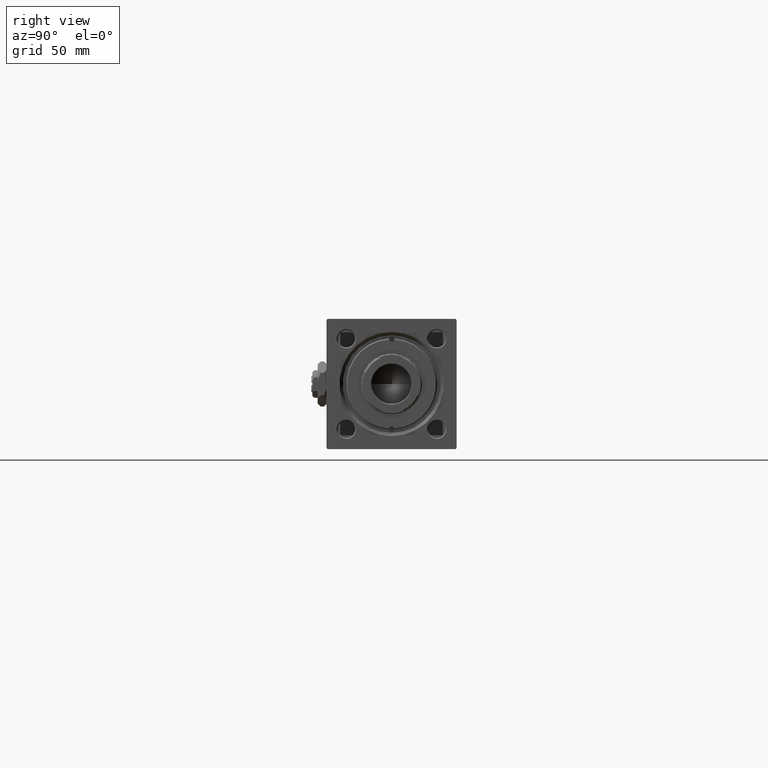
[diagram: clean part render]
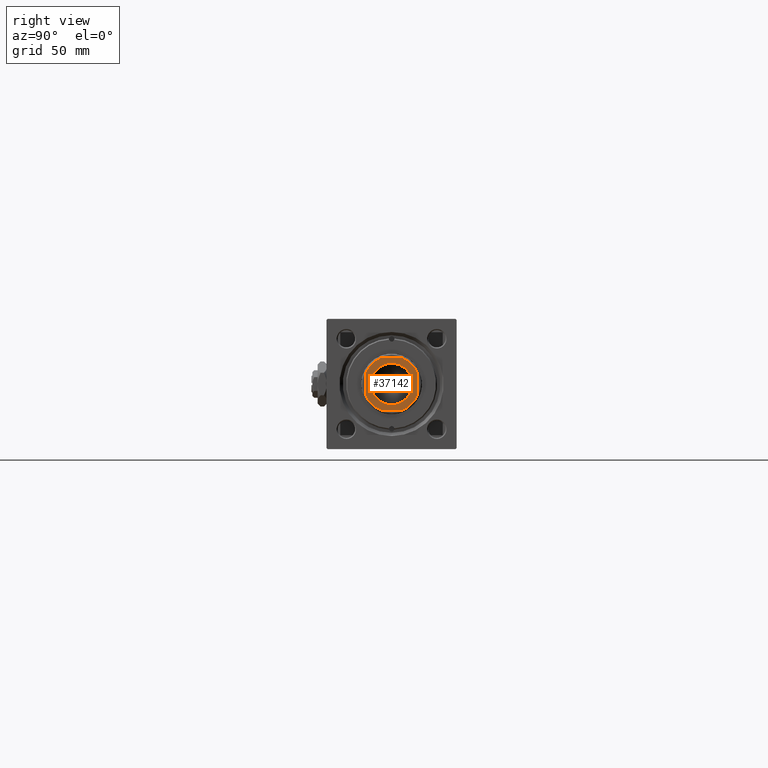
[diagram: same view with one face highlighted and labeled with its STEP entity id]
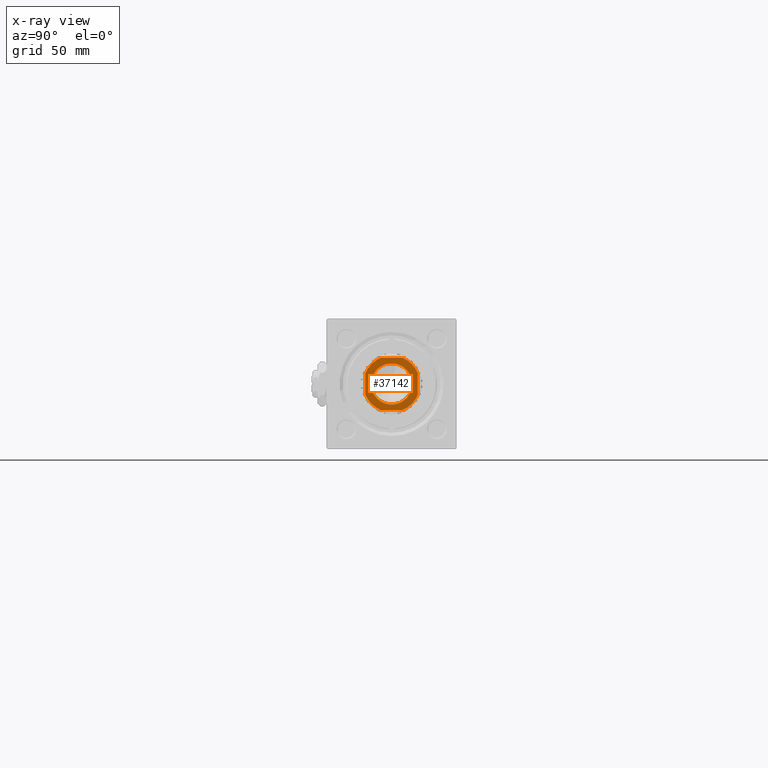
[diagram: x-ray of the same camera — body ghosted, the highlighted face saturated]
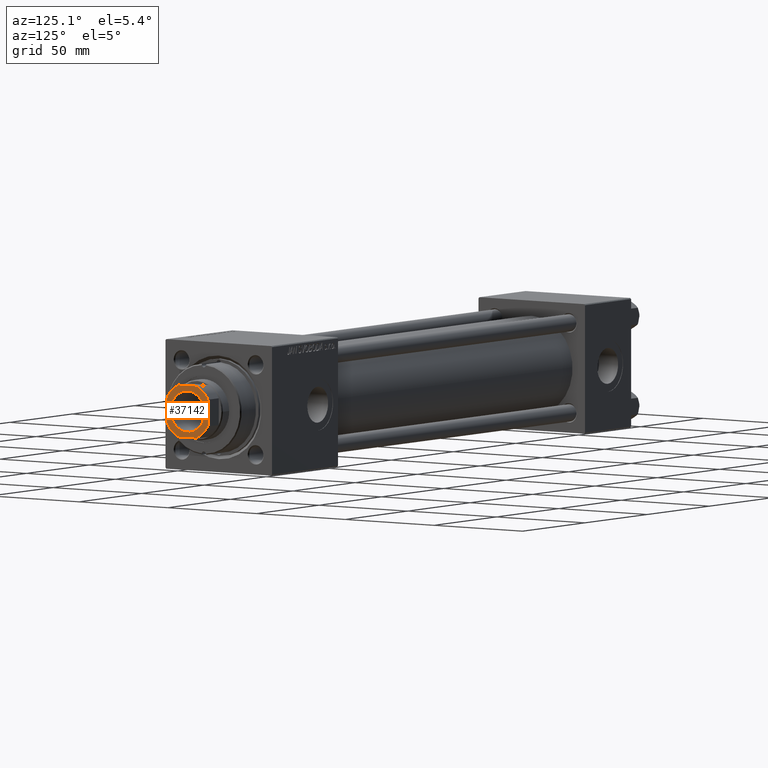
[diagram: same view with one face highlighted and labeled with its STEP entity id]
A machine part, right view. The second image highlights one B-rep face of the part: STEP entity #37142.
The next image is the same camera in x-ray: the body ghosted, the highlighted face saturated — about 0% of this face is hidden behind the body in this view.
A second angle (auxiliary view) of the same face is appended — the face is thin or edge-on in the first view.
In plain terms, the highlighted planar face has unit normal (1, 0, 0).
Its self-contained STEP definition (entity closure, byte-faithful):
#1308 = EDGE_CURVE ( 'NONE', #29845, #2218, #42999, .T. ) ;
#1855 = VERTEX_POINT ( 'NONE', #30164 ) ;
#2218 = VERTEX_POINT ( 'NONE', #50008 ) ;
#2349 = CARTESIAN_POINT ( 'NONE',  ( 0.000000000000000000, 0.000000000000000000, 276.0000000000000000 ) ) ;
#2435 = EDGE_LOOP ( 'NONE', ( #6695, #37222 ) ) ;
#2700 = CARTESIAN_POINT ( 'NONE',  ( 0.000000000000000000, 0.000000000000000000, 276.0000000000000000 ) ) ;
#2894 = AXIS2_PLACEMENT_3D ( 'NONE', #40433, #16571, #47864 ) ;
#3397 = VERTEX_POINT ( 'NONE', #16537 ) ;
#3757 = EDGE_CURVE ( 'NONE', #16076, #22108, #32649, .T. ) ;
#4507 = AXIS2_PLACEMENT_3D ( 'NONE', #16569, #44678, #8345 ) ;
#6446 = DIRECTION ( 'NONE',  ( 0.000000000000000000, -0.000000000000000000, -1.000000000000000000 ) ) ;
#6695 = ORIENTED_EDGE ( 'NONE', *, *, #19611, .T. ) ;
#6736 = DIRECTION ( 'NONE',  ( 1.000000000000000000, 0.000000000000000000, 0.000000000000000000 ) ) ;
#8092 = VECTOR ( 'NONE', #15410, 1000.000000000000000 ) ;
#8345 = DIRECTION ( 'NONE',  ( 1.000000000000000000, 0.000000000000000000, 0.000000000000000000 ) ) ;
#10423 = DIRECTION ( 'NONE',  ( 1.000000000000000000, 0.000000000000000000, 0.000000000000000000 ) ) ;
#10554 = CIRCLE ( 'NONE', #46990, 12.99999999999991829 ) ;
#11487 = AXIS2_PLACEMENT_3D ( 'NONE', #2700, #6446, #22072 ) ;
#11810 = ORIENTED_EDGE ( 'NONE', *, *, #38499, .T. ) ;
#12907 = EDGE_CURVE ( 'NONE', #3397, #28743, #32438, .T. ) ;
#14276 = VERTEX_POINT ( 'NONE', #47107 ) ;
#15221 = LINE ( 'NONE', #22635, #34866 ) ;
#15223 = CARTESIAN_POINT ( 'NONE',  ( 0.000000000000000000, 0.000000000000000000, 276.0000000000000000 ) ) ;
#15410 = DIRECTION ( 'NONE',  ( -1.000000000000000000, -0.000000000000000000, -0.000000000000000000 ) ) ;
#15592 = FACE_OUTER_BOUND ( 'NONE', #50740, .T. ) ;
#16076 = VERTEX_POINT ( 'NONE', #26405 ) ;
#16391 = CARTESIAN_POINT ( 'NONE',  ( 11.99999999999999822, 4.999999999999779732, 276.0000000000000000 ) ) ;
#16537 = CARTESIAN_POINT ( 'NONE',  ( 4.999999999999982236, -12.00000000000000355, 276.0000000000000000 ) ) ;
#16569 = CARTESIAN_POINT ( 'NONE',  ( 0.000000000000000000, 0.000000000000000000, 276.0000000000000000 ) ) ;
#16571 = DIRECTION ( 'NONE',  ( -0.000000000000000000, 0.000000000000000000, 1.000000000000000000 ) ) ;
#16927 = CARTESIAN_POINT ( 'NONE',  ( 0.000000000000000000, 0.000000000000000000, 276.0000000000000000 ) ) ;
#17318 = ORIENTED_EDGE ( 'NONE', *, *, #3757, .T. ) ;
#17448 = DIRECTION ( 'NONE',  ( 1.000000000000000000, 0.000000000000000000, 0.000000000000000000 ) ) ;
#17721 = EDGE_CURVE ( 'NONE', #28743, #40472, #40059, .T. ) ;
#18465 = EDGE_CURVE ( 'NONE', #19158, #1855, #39397, .T. ) ;
#18530 = DIRECTION ( 'NONE',  ( -0.000000000000000000, 0.000000000000000000, 1.000000000000000000 ) ) ;
#19158 = VERTEX_POINT ( 'NONE', #45512 ) ;
#19611 = EDGE_CURVE ( 'NONE', #1855, #19158, #24165, .T. ) ;
#22072 = DIRECTION ( 'NONE',  ( 1.000000000000000000, 0.000000000000000000, 0.000000000000000000 ) ) ;
#22108 = VERTEX_POINT ( 'NONE', #49709 ) ;
#22635 = CARTESIAN_POINT ( 'NONE',  ( -11.99999999999999822, -12.00000000000000355, 276.0000000000000000 ) ) ;
#24165 = CIRCLE ( 'NONE', #11487, 9.549999999999975842 ) ;
#26405 = CARTESIAN_POINT ( 'NONE',  ( 4.999999999999785949, 11.99999999999999645, 276.0000000000000000 ) ) ;
#27312 = DIRECTION ( 'NONE',  ( -2.891205793294678326E-16, 1.000000000000000000, -0.000000000000000000 ) ) ;
#27606 = ORIENTED_EDGE ( 'NONE', *, *, #1308, .T. ) ;
#28024 = AXIS2_PLACEMENT_3D ( 'NONE', #2349, #18530, #45028 ) ;
#28743 = VERTEX_POINT ( 'NONE', #49393 ) ;
#29845 = VERTEX_POINT ( 'NONE', #32355 ) ;
#30164 = CARTESIAN_POINT ( 'NONE',  ( 9.549999999999975842, 0.000000000000000000, 276.0000000000000000 ) ) ;
#30578 = CARTESIAN_POINT ( 'NONE',  ( 0.000000000000000000, 0.000000000000000000, 276.0000000000000000 ) ) ;
#31785 = AXIS2_PLACEMENT_3D ( 'NONE', #15223, #43318, #39351 ) ;
#32355 = CARTESIAN_POINT ( 'NONE',  ( -12.00000000000000000, 4.999999999999884537, 276.0000000000000000 ) ) ;
#32377 = CARTESIAN_POINT ( 'NONE',  ( -12.00000000000000000, 11.99999999999999645, 276.0000000000000000 ) ) ;
#32438 = CIRCLE ( 'NONE', #4507, 12.99999999999999645 ) ;
#32552 = VECTOR ( 'NONE', #35043, 1000.000000000000000 ) ;
#32649 = LINE ( 'NONE', #32377, #8092 ) ;
#33985 = ORIENTED_EDGE ( 'NONE', *, *, #45179, .T. ) ;
#34766 = ORIENTED_EDGE ( 'NONE', *, *, #12907, .T. ) ;
#34866 = VECTOR ( 'NONE', #6736, 1000.000000000000000 ) ;
#35043 = DIRECTION ( 'NONE',  ( 7.228014483236695816E-17, -1.000000000000000000, 0.000000000000000000 ) ) ;
#37142 = ADVANCED_FACE ( 'NONE', ( #51941, #15592 ), #47954, .T. ) ;
#37222 = ORIENTED_EDGE ( 'NONE', *, *, #18465, .T. ) ;
#37643 = CIRCLE ( 'NONE', #2894, 12.99999999999991473 ) ;
#37692 = ORIENTED_EDGE ( 'NONE', *, *, #40509, .T. ) ;
#38120 = DIRECTION ( 'NONE',  ( -0.000000000000000000, 0.000000000000000000, 1.000000000000000000 ) ) ;
#38499 = EDGE_CURVE ( 'NONE', #14276, #3397, #15221, .T. ) ;
#39351 = DIRECTION ( 'NONE',  ( 1.000000000000000000, 0.000000000000000000, 0.000000000000000000 ) ) ;
#39397 = CIRCLE ( 'NONE', #31785, 9.549999999999975842 ) ;
#39799 = CARTESIAN_POINT ( 'NONE',  ( 11.99999999999999645, 11.99999999999999645, 276.0000000000000000 ) ) ;
#40059 = LINE ( 'NONE', #39799, #49535 ) ;
#40433 = CARTESIAN_POINT ( 'NONE',  ( 0.000000000000000000, 0.000000000000000000, 276.0000000000000000 ) ) ;
#40472 = VERTEX_POINT ( 'NONE', #16391 ) ;
#40509 = EDGE_CURVE ( 'NONE', #22108, #29845, #47619, .T. ) ;
#42999 = LINE ( 'NONE', #46728, #32552 ) ;
#43318 = DIRECTION ( 'NONE',  ( 0.000000000000000000, -0.000000000000000000, -1.000000000000000000 ) ) ;
#44307 = ORIENTED_EDGE ( 'NONE', *, *, #17721, .T. ) ;
#44318 = ORIENTED_EDGE ( 'NONE', *, *, #46265, .T. ) ;
#44678 = DIRECTION ( 'NONE',  ( -0.000000000000000000, 0.000000000000000000, 1.000000000000000000 ) ) ;
#45028 = DIRECTION ( 'NONE',  ( 1.000000000000000000, 0.000000000000000000, 0.000000000000000000 ) ) ;
#45179 = EDGE_CURVE ( 'NONE', #40472, #16076, #37643, .T. ) ;
#45512 = CARTESIAN_POINT ( 'NONE',  ( -9.549999999999975842, 1.169537693185719205E-15, 276.0000000000000000 ) ) ;
#46265 = EDGE_CURVE ( 'NONE', #2218, #14276, #10554, .T. ) ;
#46728 = CARTESIAN_POINT ( 'NONE',  ( -12.00000000000000000, 11.99999999999999645, 276.0000000000000000 ) ) ;
#46765 = DIRECTION ( 'NONE',  ( -0.000000000000000000, 0.000000000000000000, 1.000000000000000000 ) ) ;
#46990 = AXIS2_PLACEMENT_3D ( 'NONE', #30578, #46765, #10423 ) ;
#47107 = CARTESIAN_POINT ( 'NONE',  ( -4.999999999999778844, -12.00000000000000355, 276.0000000000000000 ) ) ;
#47619 = CIRCLE ( 'NONE', #49354, 12.99999999999995559 ) ;
#47864 = DIRECTION ( 'NONE',  ( 1.000000000000000000, 0.000000000000000000, 0.000000000000000000 ) ) ;
#47954 = PLANE ( 'NONE',  #28024 ) ;
#49354 = AXIS2_PLACEMENT_3D ( 'NONE', #16927, #38120, #17448 ) ;
#49393 = CARTESIAN_POINT ( 'NONE',  ( 12.00000000000000178, -4.999999999999986677, 276.0000000000000000 ) ) ;
#49535 = VECTOR ( 'NONE', #27312, 1000.000000000000000 ) ;
#49709 = CARTESIAN_POINT ( 'NONE',  ( -4.999999999999892530, 11.99999999999999645, 276.0000000000000000 ) ) ;
#50008 = CARTESIAN_POINT ( 'NONE',  ( -12.00000000000000000, -4.999999999999787725, 276.0000000000000000 ) ) ;
#50740 = EDGE_LOOP ( 'NONE', ( #44307, #33985, #17318, #37692, #27606, #44318, #11810, #34766 ) ) ;
#51941 = FACE_BOUND ( 'NONE', #2435, .T. ) ;